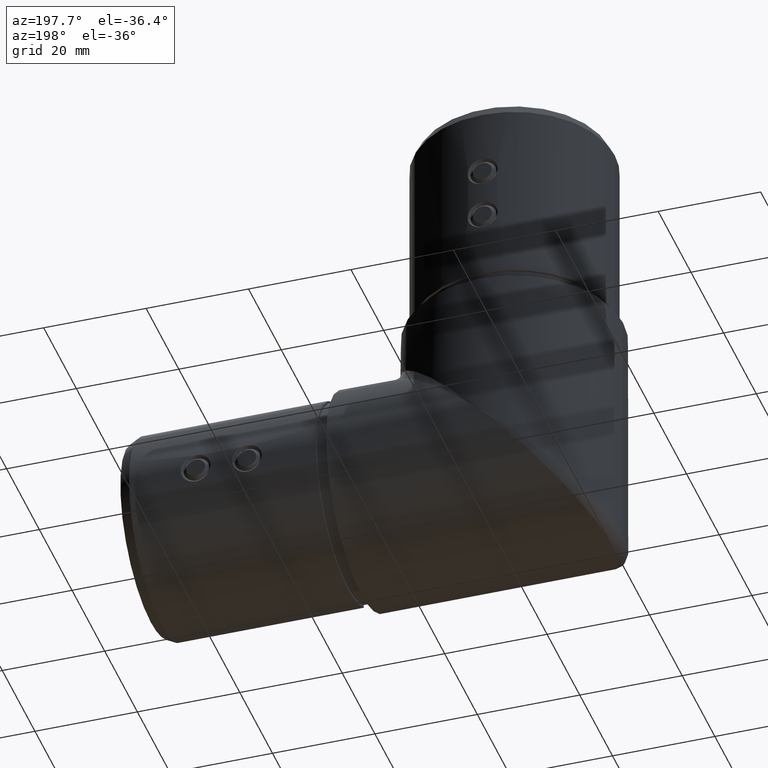
[diagram: clean part render]
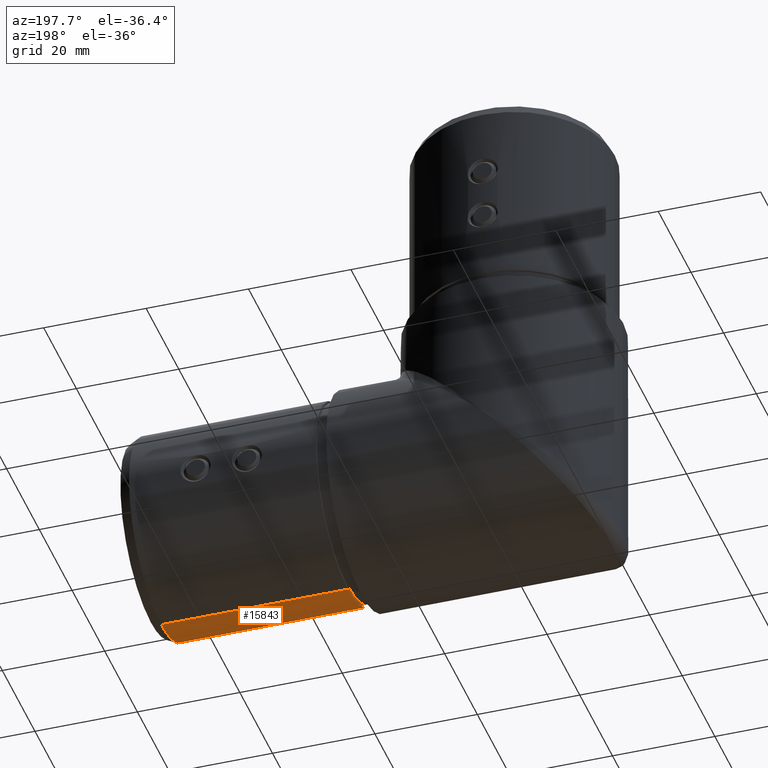
[diagram: same view with one face highlighted and labeled with its STEP entity id]
A machine part, auxiliary view. The second image highlights one B-rep face of the part: STEP entity #15843.
In plain terms, the highlighted cylindrical surface (partial cylindrical patch) has radius 19.6 mm, axis along (-1, 0, 0).
Its self-contained STEP definition (entity closure, byte-faithful):
#96 = CARTESIAN_POINT ( 'NONE',  ( 32.49999999999999300, -9.800000378167187200, -16.97409769584008300 ) ) ;
#352 = VERTEX_POINT ( 'NONE', #8018 ) ;
#1376 = CARTESIAN_POINT ( 'NONE',  ( 32.49999999999999300, 2.400307726328813100E-015, -19.60000000000001900 ) ) ;
#1462 = ORIENTED_EDGE ( 'NONE', *, *, #10340, .F. ) ;
#2097 = LINE ( 'NONE', #7493, #11995 ) ;
#2142 = CARTESIAN_POINT ( 'NONE',  ( 68.99999999999995700, 0.0000000000000000000, -3.064215547965429500E-014 ) ) ;
#2679 = CYLINDRICAL_SURFACE ( 'NONE', #8892, 19.60000000000000500 ) ;
#3171 = ORIENTED_EDGE ( 'NONE', *, *, #9463, .T. ) ;
#5716 = DIRECTION ( 'NONE',  ( -7.080503983578802800E-016, 0.0000000000000000000, -1.000000000000000000 ) ) ;
#7085 = VERTEX_POINT ( 'NONE', #18521 ) ;
#7406 = DIRECTION ( 'NONE',  ( -1.000000000000000000, -0.0000000000000000000, 4.440892098500626200E-016 ) ) ;
#7493 = CARTESIAN_POINT ( 'NONE',  ( 71.00000000000000000, 2.400307726328813100E-015, -19.60000000000003700 ) ) ;
#7706 = DIRECTION ( 'NONE',  ( -1.000000000000000000, -0.0000000000000000000, 4.440892098500625200E-016 ) ) ;
#8018 = CARTESIAN_POINT ( 'NONE',  ( 68.99999999999994300, -9.800000378167194300, -16.97409769584010400 ) ) ;
#8853 = EDGE_LOOP ( 'NONE', ( #11438, #3171, #13853, #1462 ) ) ;
#8892 = AXIS2_PLACEMENT_3D ( 'NONE', #16212, #14690, #12880 ) ;
#9463 = EDGE_CURVE ( 'NONE', #7085, #352, #17235, .T. ) ;
#9911 = LINE ( 'NONE', #19484, #13785 ) ;
#10340 = EDGE_CURVE ( 'NONE', #10435, #20884, #10728, .T. ) ;
#10435 = VERTEX_POINT ( 'NONE', #1376 ) ;
#10728 = CIRCLE ( 'NONE', #11398, 19.60000000000000500 ) ;
#11398 = AXIS2_PLACEMENT_3D ( 'NONE', #14165, #7706, #16038 ) ;
#11438 = ORIENTED_EDGE ( 'NONE', *, *, #11974, .F. ) ;
#11974 = EDGE_CURVE ( 'NONE', #7085, #10435, #2097, .T. ) ;
#11995 = VECTOR ( 'NONE', #15898, 1000.000000000000000 ) ;
#12880 = DIRECTION ( 'NONE',  ( 7.080503983578802800E-016, 0.0000000000000000000, 1.000000000000000000 ) ) ;
#13474 = EDGE_CURVE ( 'NONE', #352, #20884, #9911, .T. ) ;
#13785 = VECTOR ( 'NONE', #19631, 1000.000000000000000 ) ;
#13853 = ORIENTED_EDGE ( 'NONE', *, *, #13474, .T. ) ;
#14165 = CARTESIAN_POINT ( 'NONE',  ( 32.50000000000000000, 0.0000000000000000000, -1.443289932012703200E-014 ) ) ;
#14690 = DIRECTION ( 'NONE',  ( -1.000000000000000000, -0.0000000000000000000, 4.440892098500625200E-016 ) ) ;
#15530 = AXIS2_PLACEMENT_3D ( 'NONE', #2142, #7406, #5716 ) ;
#15843 = ADVANCED_FACE ( 'NONE', ( #18681 ), #2679, .T. ) ;
#15898 = DIRECTION ( 'NONE',  ( -1.000000000000000000, -0.0000000000000000000, 4.440892098500625200E-016 ) ) ;
#16038 = DIRECTION ( 'NONE',  ( 3.540251991789401400E-016, 0.0000000000000000000, 1.000000000000000000 ) ) ;
#16212 = CARTESIAN_POINT ( 'NONE',  ( 71.00000000000001400, 0.0000000000000000000, -3.153033389935443900E-014 ) ) ;
#17235 = CIRCLE ( 'NONE', #15530, 19.60000000000000500 ) ;
#18521 = CARTESIAN_POINT ( 'NONE',  ( 68.99999999999994300, 2.400307726328813900E-015, -19.60000000000003700 ) ) ;
#18681 = FACE_OUTER_BOUND ( 'NONE', #8853, .T. ) ;
#19484 = CARTESIAN_POINT ( 'NONE',  ( 71.00000000000000000, -9.800000378167187200, -16.97409769584010100 ) ) ;
#19631 = DIRECTION ( 'NONE',  ( -1.000000000000000000, -0.0000000000000000000, 4.440892098500625200E-016 ) ) ;
#20884 = VERTEX_POINT ( 'NONE', #96 ) ;